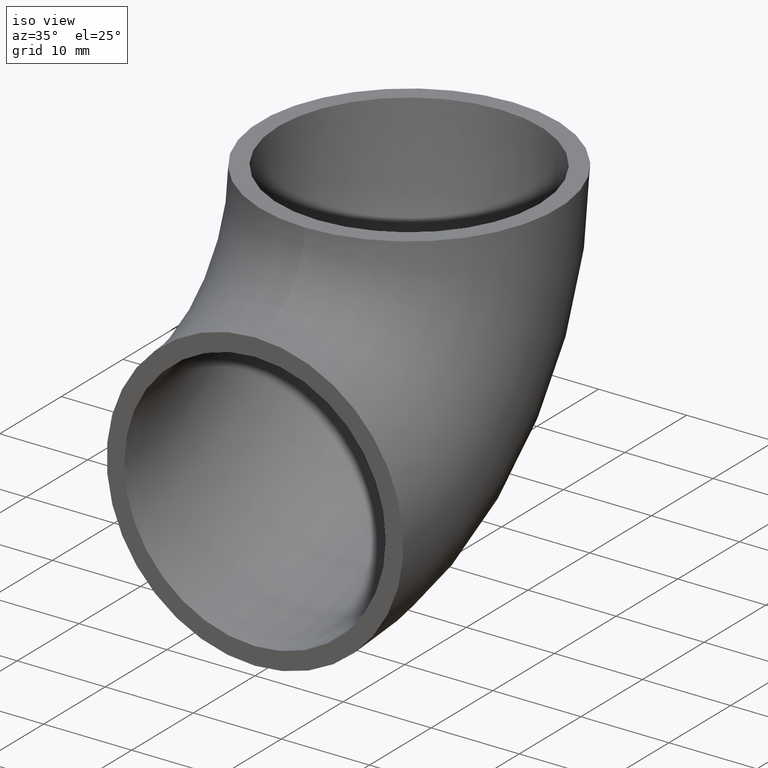
[diagram: clean part render]
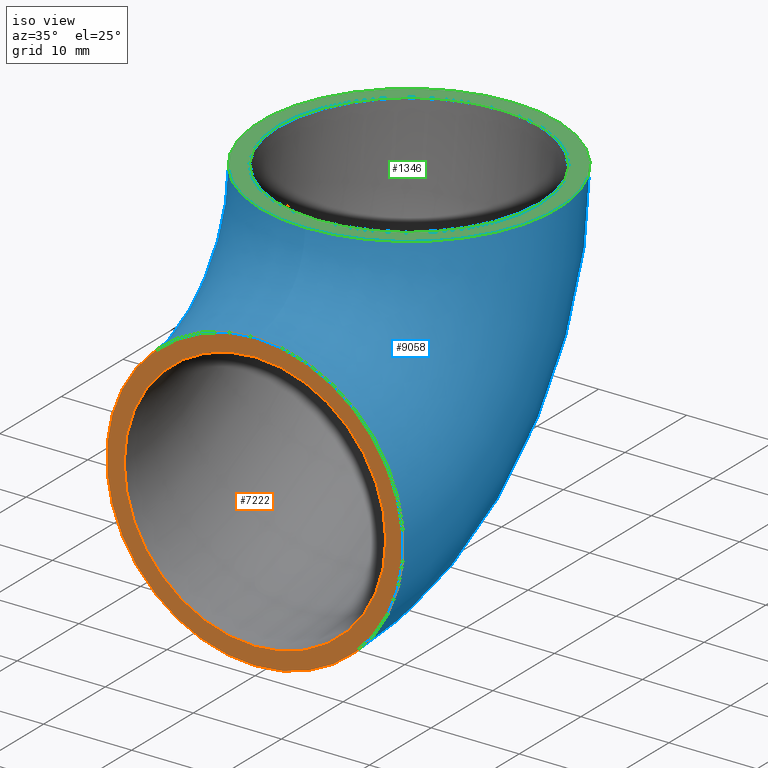
[diagram: same view with three faces highlighted in distinct colors, each labeled with its STEP entity id]
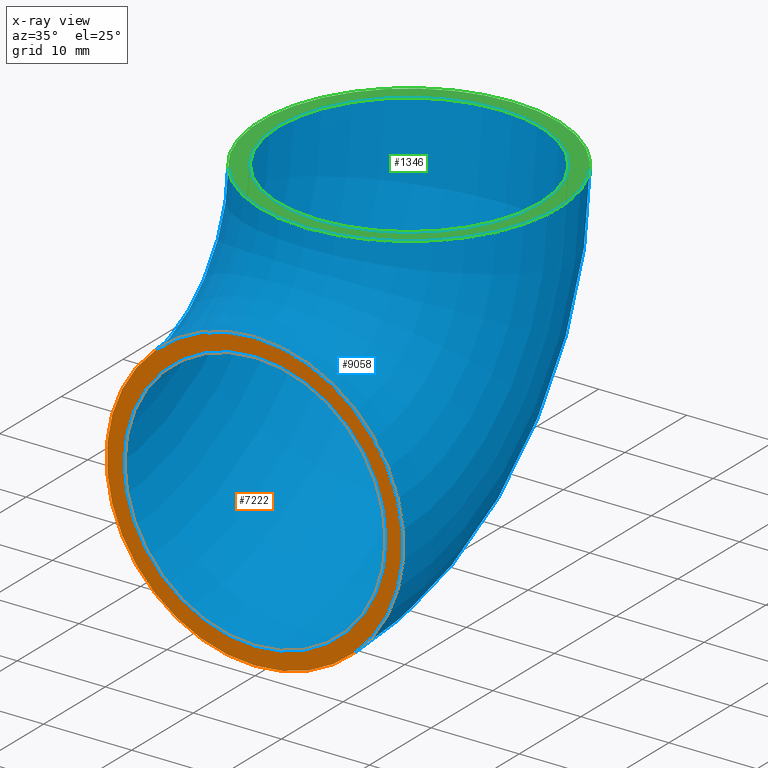
[diagram: x-ray of the same camera — body ghosted, the three highlighted faces saturated]
A machine part, iso view with three faces highlighted in distinct colors.
The next image is the same camera in x-ray (body ghosted, the three faces saturated) — at least one of them is partly hidden behind the body in this view.
Their STEP definitions:

[orange] entity #7222 — the highlighted planar face has unit normal (0, 1, 0).
#117 = CIRCLE ( 'NONE', #6726, 14.85000000000000142 ) ;
#697 = EDGE_CURVE ( 'NONE', #11385, #11385, #8562, .T. ) ;
#2660 = DIRECTION ( 'NONE',  ( 0.000000000000000000, 1.000000000000000000, 0.000000000000000000 ) ) ;
#2694 = DIRECTION ( 'NONE',  ( 0.000000000000000000, 0.000000000000000000, 1.000000000000000000 ) ) ;
#2790 = ORIENTED_EDGE ( 'NONE', *, *, #4840, .T. ) ;
#3167 = DIRECTION ( 'NONE',  ( 0.000000000000000000, 1.000000000000000000, 0.000000000000000000 ) ) ;
#3403 = AXIS2_PLACEMENT_3D ( 'NONE', #6025, #2660, #2694 ) ;
#4397 = VERTEX_POINT ( 'NONE', #9181 ) ;
#4840 = EDGE_CURVE ( 'NONE', #4397, #4397, #117, .T. ) ;
#4856 = FACE_OUTER_BOUND ( 'NONE', #8037, .T. ) ;
#5468 = CARTESIAN_POINT ( 'NONE',  ( 0.000000000000000000, 0.000000000000000000, -8.150000000000000355 ) ) ;
#5953 = DIRECTION ( 'NONE',  ( 0.000000000000000000, -0.000000000000000000, 1.000000000000000000 ) ) ;
#6025 = CARTESIAN_POINT ( 'NONE',  ( 0.000000000000000000, 0.000000000000000000, -25.00000000000000000 ) ) ;
#6726 = AXIS2_PLACEMENT_3D ( 'NONE', #11643, #3167, #9792 ) ;
#7222 = ADVANCED_FACE ( 'NONE', ( #9812, #4856 ), #8650, .F. ) ;
#8037 = EDGE_LOOP ( 'NONE', ( #10694 ) ) ;
#8562 = CIRCLE ( 'NONE', #3403, 16.85000000000000142 ) ;
#8650 = PLANE ( 'NONE',  #11055 ) ;
#8770 = DIRECTION ( 'NONE',  ( 0.000000000000000000, 1.000000000000000000, 0.000000000000000000 ) ) ;
#9096 = EDGE_LOOP ( 'NONE', ( #2790 ) ) ;
#9181 = CARTESIAN_POINT ( 'NONE',  ( 0.000000000000000000, 0.000000000000000000, -10.14999999999999858 ) ) ;
#9792 = DIRECTION ( 'NONE',  ( 0.000000000000000000, 0.000000000000000000, 1.000000000000000000 ) ) ;
#9812 = FACE_BOUND ( 'NONE', #9096, .T. ) ;
#10694 = ORIENTED_EDGE ( 'NONE', *, *, #697, .F. ) ;
#11055 = AXIS2_PLACEMENT_3D ( 'NONE', #11558, #8770, #5953 ) ;
#11385 = VERTEX_POINT ( 'NONE', #5468 ) ;
#11558 = CARTESIAN_POINT ( 'NONE',  ( 0.000000000000000000, 0.000000000000000000, -25.00000000000000000 ) ) ;
#11643 = CARTESIAN_POINT ( 'NONE',  ( 0.000000000000000000, 0.000000000000000000, -25.00000000000000000 ) ) ;

[blue] entity #9058 — the highlighted toroidal blend (fillet) surface has major radius 25 mm and minor (blend) radius 16.85 mm.
#697 = EDGE_CURVE ( 'NONE', #11385, #11385, #8562, .T. ) ;
#1219 = FACE_OUTER_BOUND ( 'NONE', #4066, .T. ) ;
#1618 = ORIENTED_EDGE ( 'NONE', *, *, #697, .T. ) ;
#2660 = DIRECTION ( 'NONE',  ( 0.000000000000000000, 1.000000000000000000, 0.000000000000000000 ) ) ;
#2694 = DIRECTION ( 'NONE',  ( 0.000000000000000000, 0.000000000000000000, 1.000000000000000000 ) ) ;
#3403 = AXIS2_PLACEMENT_3D ( 'NONE', #6025, #2660, #2694 ) ;
#3527 = DIRECTION ( 'NONE',  ( 0.000000000000000000, -1.000000000000000000, 6.123233995736766036E-17 ) ) ;
#4066 = EDGE_LOOP ( 'NONE', ( #4185 ) ) ;
#4185 = ORIENTED_EDGE ( 'NONE', *, *, #9258, .F. ) ;
#4257 = AXIS2_PLACEMENT_3D ( 'NONE', #11568, #6828, #6006 ) ;
#5468 = CARTESIAN_POINT ( 'NONE',  ( 0.000000000000000000, 0.000000000000000000, -8.150000000000000355 ) ) ;
#5835 = FACE_OUTER_BOUND ( 'NONE', #11288, .T. ) ;
#6006 = DIRECTION ( 'NONE',  ( 0.000000000000000000, 0.000000000000000000, 1.000000000000000000 ) ) ;
#6025 = CARTESIAN_POINT ( 'NONE',  ( 0.000000000000000000, 0.000000000000000000, -25.00000000000000000 ) ) ;
#6282 = DIRECTION ( 'NONE',  ( 0.000000000000000000, 6.123233995736766036E-17, 1.000000000000000000 ) ) ;
#6302 = CARTESIAN_POINT ( 'NONE',  ( 0.000000000000000000, 8.150000000000000355, -4.990435706525463993E-16 ) ) ;
#6585 = CIRCLE ( 'NONE', #11583, 16.85000000000000142 ) ;
#6828 = DIRECTION ( 'NONE',  ( -1.000000000000000000, -0.000000000000000000, -0.000000000000000000 ) ) ;
#8562 = CIRCLE ( 'NONE', #3403, 16.85000000000000142 ) ;
#9058 = ADVANCED_FACE ( 'NONE', ( #1219, #5835 ), #9939, .T. ) ;
#9258 = EDGE_CURVE ( 'NONE', #9919, #9919, #6585, .T. ) ;
#9919 = VERTEX_POINT ( 'NONE', #6302 ) ;
#9939 = TOROIDAL_SURFACE ( 'NONE', #4257, 25.00000000000000000, 16.85000000000000142 ) ;
#11288 = EDGE_LOOP ( 'NONE', ( #1618 ) ) ;
#11385 = VERTEX_POINT ( 'NONE', #5468 ) ;
#11568 = CARTESIAN_POINT ( 'NONE',  ( 0.000000000000000000, 0.000000000000000000, 0.000000000000000000 ) ) ;
#11583 = AXIS2_PLACEMENT_3D ( 'NONE', #11869, #6282, #3527 ) ;
#11869 = CARTESIAN_POINT ( 'NONE',  ( 0.000000000000000000, 25.00000000000000000, -1.530808498934191521E-15 ) ) ;

[green] entity #1346 — the highlighted planar face has unit normal (0, 0, 1).
#1346 = ADVANCED_FACE ( 'NONE', ( #6199, #10138 ), #1812, .T. ) ;
#1687 = EDGE_CURVE ( 'NONE', #7726, #7726, #7083, .T. ) ;
#1812 = PLANE ( 'NONE',  #11190 ) ;
#2740 = CARTESIAN_POINT ( 'NONE',  ( 0.000000000000000000, 25.00000000000000000, -1.530808498934191521E-15 ) ) ;
#2879 = DIRECTION ( 'NONE',  ( 0.000000000000000000, -1.000000000000000000, 6.123233995736766036E-17 ) ) ;
#3527 = DIRECTION ( 'NONE',  ( 0.000000000000000000, -1.000000000000000000, 6.123233995736766036E-17 ) ) ;
#3658 = ORIENTED_EDGE ( 'NONE', *, *, #9258, .T. ) ;
#4161 = DIRECTION ( 'NONE',  ( 0.000000000000000000, 6.123233995736766036E-17, 1.000000000000000000 ) ) ;
#5943 = ORIENTED_EDGE ( 'NONE', *, *, #1687, .F. ) ;
#6199 = FACE_BOUND ( 'NONE', #6279, .T. ) ;
#6279 = EDGE_LOOP ( 'NONE', ( #5943 ) ) ;
#6282 = DIRECTION ( 'NONE',  ( 0.000000000000000000, 6.123233995736766036E-17, 1.000000000000000000 ) ) ;
#6302 = CARTESIAN_POINT ( 'NONE',  ( 0.000000000000000000, 8.150000000000000355, -4.990435706525463993E-16 ) ) ;
#6585 = CIRCLE ( 'NONE', #11583, 16.85000000000000142 ) ;
#7083 = CIRCLE ( 'NONE', #10368, 14.85000000000000142 ) ;
#7518 = DIRECTION ( 'NONE',  ( 0.000000000000000000, 6.123233995736766036E-17, 1.000000000000000000 ) ) ;
#7726 = VERTEX_POINT ( 'NONE', #10081 ) ;
#8811 = EDGE_LOOP ( 'NONE', ( #3658 ) ) ;
#8833 = CARTESIAN_POINT ( 'NONE',  ( 0.000000000000000000, 25.00000000000000000, -1.530808498934191521E-15 ) ) ;
#9258 = EDGE_CURVE ( 'NONE', #9919, #9919, #6585, .T. ) ;
#9919 = VERTEX_POINT ( 'NONE', #6302 ) ;
#10081 = CARTESIAN_POINT ( 'NONE',  ( 0.000000000000000000, 10.14999999999999858, -6.215082505672816460E-16 ) ) ;
#10138 = FACE_OUTER_BOUND ( 'NONE', #8811, .T. ) ;
#10368 = AXIS2_PLACEMENT_3D ( 'NONE', #8833, #4161, #11673 ) ;
#11190 = AXIS2_PLACEMENT_3D ( 'NONE', #2740, #7518, #2879 ) ;
#11583 = AXIS2_PLACEMENT_3D ( 'NONE', #11869, #6282, #3527 ) ;
#11673 = DIRECTION ( 'NONE',  ( 0.000000000000000000, -1.000000000000000000, 6.123233995736767268E-17 ) ) ;
#11869 = CARTESIAN_POINT ( 'NONE',  ( 0.000000000000000000, 25.00000000000000000, -1.530808498934191521E-15 ) ) ;